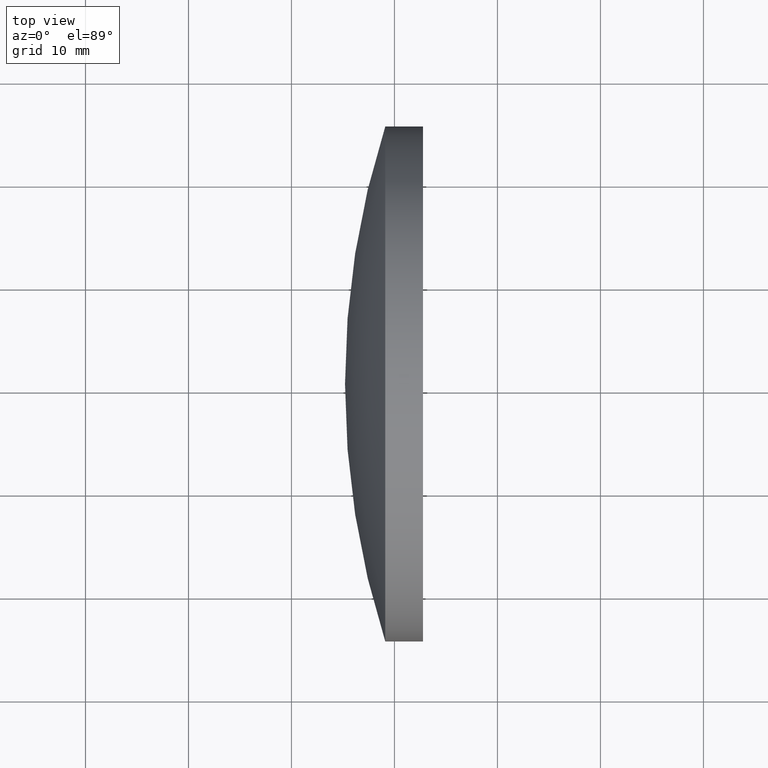
[diagram: clean part render]
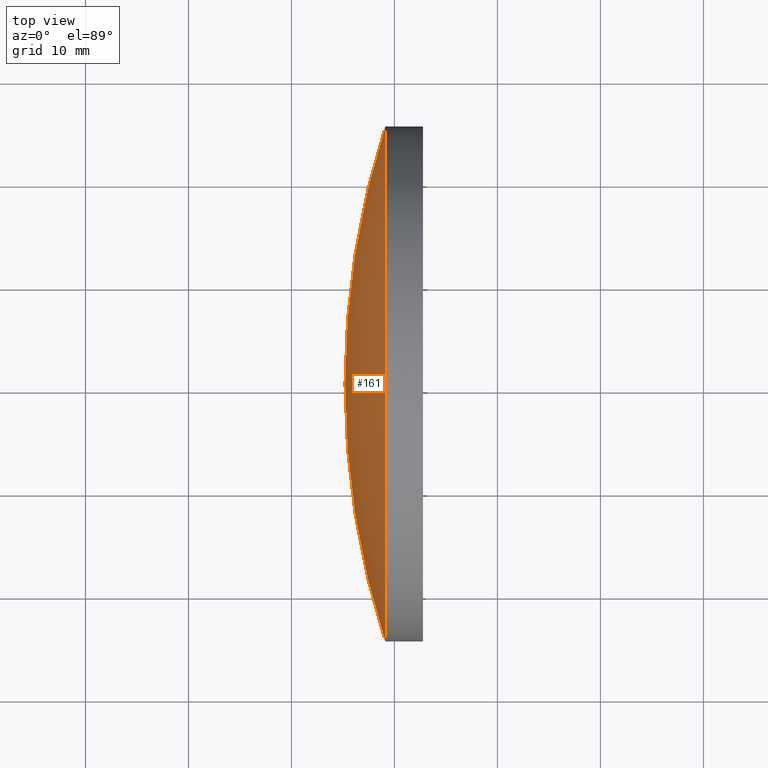
[diagram: same view with one face highlighted and labeled with its STEP entity id]
A machine part, top view. The second image highlights one B-rep face of the part: STEP entity #161.
In plain terms, the highlighted spherical surface has radius 81.9 mm.
Its self-contained STEP definition (entity closure, byte-faithful):
#3 = CIRCLE ( 'NONE', #96, 81.90000000000000600 ) ;
#5 = VERTEX_POINT ( 'NONE', #40 ) ;
#8 = EDGE_LOOP ( 'NONE', ( #126, #147, #78 ) ) ;
#11 = VERTEX_POINT ( 'NONE', #153 ) ;
#27 = CIRCLE ( 'NONE', #66, 24.99999999999989700 ) ;
#29 = DIRECTION ( 'NONE',  ( -8.496118506040342700E-032, 1.224646799147353200E-016, -1.000000000000000000 ) ) ;
#40 = CARTESIAN_POINT ( 'NONE',  ( 245.1989956717489500, 130.4336809418805100, 0.0000000000000000000 ) ) ;
#49 = AXIS2_PLACEMENT_3D ( 'NONE', #86, #88, #188 ) ;
#51 = SPHERICAL_SURFACE ( 'NONE', #170, 81.90000000000000600 ) ;
#58 = CARTESIAN_POINT ( 'NONE',  ( 249.1079064371447200, 130.4336809418806500, 0.0000000000000000000 ) ) ;
#59 = DIRECTION ( 'NONE',  ( 0.0000000000000000000, 1.000000000000000000, 1.224646799147353000E-016 ) ) ;
#65 = CIRCLE ( 'NONE', #49, 81.89999999999997700 ) ;
#66 = AXIS2_PLACEMENT_3D ( 'NONE', #58, #106, #160 ) ;
#77 = FACE_OUTER_BOUND ( 'NONE', #8, .T. ) ;
#78 = ORIENTED_EDGE ( 'NONE', *, *, #112, .T. ) ;
#86 = CARTESIAN_POINT ( 'NONE',  ( 327.0989956717489200, 130.4336809418805700, 0.0000000000000000000 ) ) ;
#88 = DIRECTION ( 'NONE',  ( -0.0000000000000000000, 0.0000000000000000000, 1.000000000000000000 ) ) ;
#96 = AXIS2_PLACEMENT_3D ( 'NONE', #157, #29, #59 ) ;
#106 = DIRECTION ( 'NONE',  ( -1.000000000000000000, -6.937607244762875000E-016, -0.0000000000000000000 ) ) ;
#112 = EDGE_CURVE ( 'NONE', #129, #5, #65, .T. ) ;
#114 = CARTESIAN_POINT ( 'NONE',  ( 249.1079064371446900, 155.4336809418805400, 0.0000000000000000000 ) ) ;
#124 = EDGE_CURVE ( 'NONE', #11, #129, #27, .T. ) ;
#126 = ORIENTED_EDGE ( 'NONE', *, *, #165, .F. ) ;
#129 = VERTEX_POINT ( 'NONE', #114 ) ;
#142 = DIRECTION ( 'NONE',  ( -6.777918343254923500E-016, 1.000000000000000000, 0.0000000000000000000 ) ) ;
#147 = ORIENTED_EDGE ( 'NONE', *, *, #124, .T. ) ;
#153 = CARTESIAN_POINT ( 'NONE',  ( 249.1079064371447200, 105.4336809418806500, -3.061616997868367700E-015 ) ) ;
#157 = CARTESIAN_POINT ( 'NONE',  ( 327.0989956717489200, 130.4336809418805700, 0.0000000000000000000 ) ) ;
#160 = DIRECTION ( 'NONE',  ( 1.110223024625161100E-015, -1.000000000000000000, 0.0000000000000000000 ) ) ;
#161 = ADVANCED_FACE ( 'NONE', ( #77 ), #51, .T. ) ;
#163 = DIRECTION ( 'NONE',  ( -0.0000000000000000000, 0.0000000000000000000, -1.000000000000000000 ) ) ;
#165 = EDGE_CURVE ( 'NONE', #11, #5, #3, .T. ) ;
#170 = AXIS2_PLACEMENT_3D ( 'NONE', #187, #163, #142 ) ;
#187 = CARTESIAN_POINT ( 'NONE',  ( 327.0989956717489200, 130.4336809418805700, 0.0000000000000000000 ) ) ;
#188 = DIRECTION ( 'NONE',  ( 1.000000000000000000, 0.0000000000000000000, 0.0000000000000000000 ) ) ;